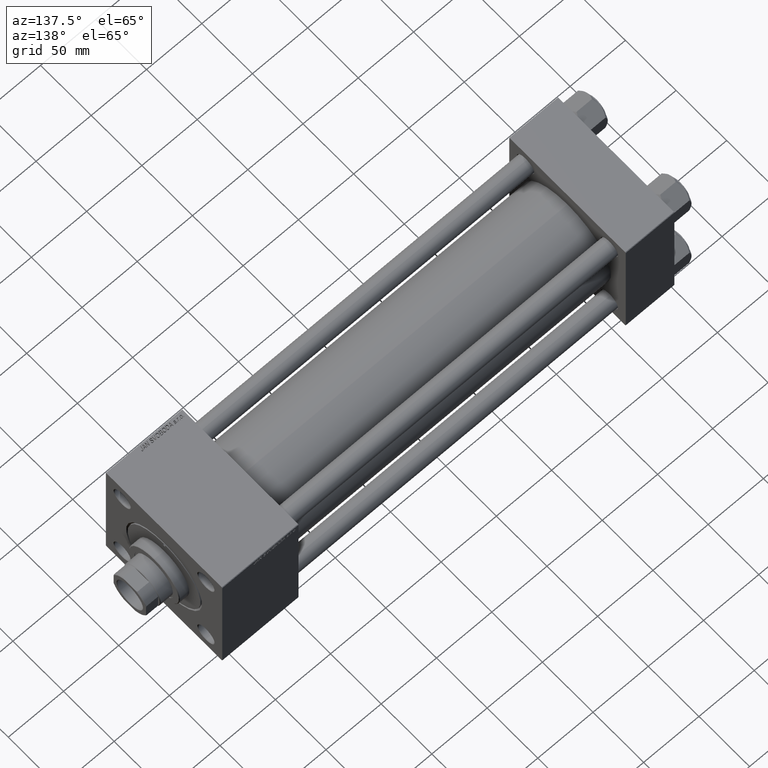
[diagram: clean part render]
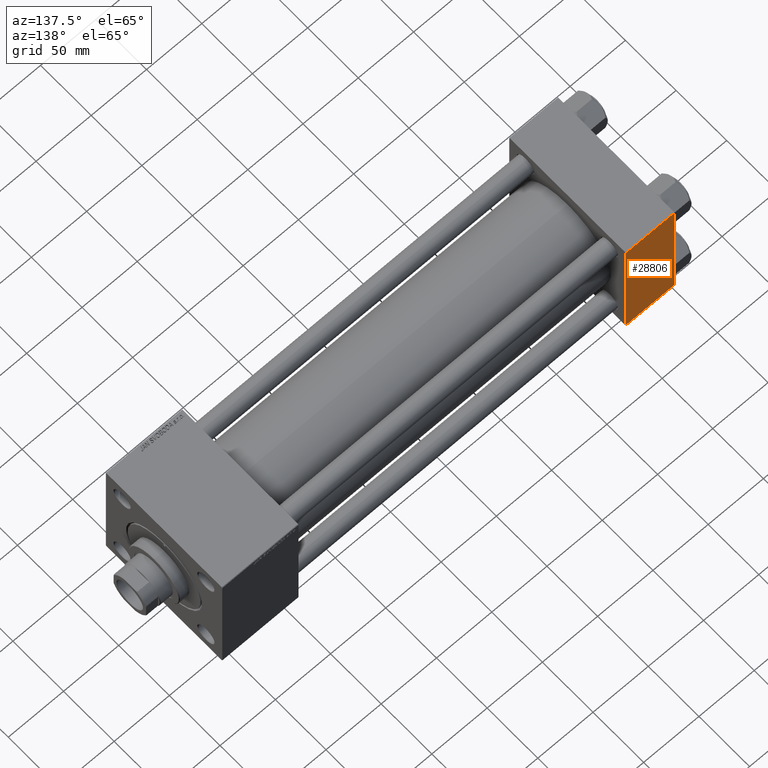
[diagram: same view with one face highlighted and labeled with its STEP entity id]
A machine part, auxiliary view. The second image highlights one B-rep face of the part: STEP entity #28806.
In plain terms, the highlighted planar face has unit normal (0, 1, 0).
Its self-contained STEP definition (entity closure, byte-faithful):
#63 = LINE ( 'NONE', #15701, #32620 ) ;
#191 = CARTESIAN_POINT ( 'NONE',  ( 44.00000000000000000, 57.49999999999999289, -57.00000000000000711 ) ) ;
#586 = VECTOR ( 'NONE', #38319, 1000.000000000000000 ) ;
#1879 = CARTESIAN_POINT ( 'NONE',  ( 44.00000000000000000, 57.49999999999999289, 57.00000000000003553 ) ) ;
#2037 = VERTEX_POINT ( 'NONE', #1879 ) ;
#3162 = LINE ( 'NONE', #33958, #46163 ) ;
#3938 = LINE ( 'NONE', #15249, #35849 ) ;
#6564 = VERTEX_POINT ( 'NONE', #38716 ) ;
#10856 = DIRECTION ( 'NONE',  ( -1.000000000000000000, 0.000000000000000000, 0.000000000000000000 ) ) ;
#11949 = DIRECTION ( 'NONE',  ( 0.000000000000000000, -0.000000000000000000, 1.000000000000000000 ) ) ;
#14452 = DIRECTION ( 'NONE',  ( 0.000000000000000000, 0.000000000000000000, -1.000000000000000000 ) ) ;
#15249 = CARTESIAN_POINT ( 'NONE',  ( 0.000000000000000000, 57.49999999999999289, 57.50000000000000711 ) ) ;
#15701 = CARTESIAN_POINT ( 'NONE',  ( 44.00000000000000000, 57.49999999999999289, -57.00000000000000711 ) ) ;
#16037 = EDGE_CURVE ( 'NONE', #20031, #6564, #3938, .T. ) ;
#16503 = EDGE_LOOP ( 'NONE', ( #40114, #30880, #24908, #31370 ) ) ;
#16643 = CARTESIAN_POINT ( 'NONE',  ( 44.00000000000000000, 57.49999999999999289, 57.00000000000003553 ) ) ;
#19135 = CARTESIAN_POINT ( 'NONE',  ( 44.00000000000000000, 57.49999999999999289, 57.50000000000000711 ) ) ;
#19843 = CARTESIAN_POINT ( 'NONE',  ( 0.000000000000000000, 57.49999999999999289, 57.00000000000003553 ) ) ;
#20031 = VERTEX_POINT ( 'NONE', #19843 ) ;
#22224 = AXIS2_PLACEMENT_3D ( 'NONE', #19135, #46624, #11949 ) ;
#23959 = VERTEX_POINT ( 'NONE', #191 ) ;
#24908 = ORIENTED_EDGE ( 'NONE', *, *, #16037, .F. ) ;
#28806 = ADVANCED_FACE ( 'NONE', ( #38399 ), #30977, .T. ) ;
#30880 = ORIENTED_EDGE ( 'NONE', *, *, #50135, .T. ) ;
#30935 = DIRECTION ( 'NONE',  ( 0.000000000000000000, 0.000000000000000000, -1.000000000000000000 ) ) ;
#30977 = PLANE ( 'NONE',  #22224 ) ;
#31370 = ORIENTED_EDGE ( 'NONE', *, *, #48242, .T. ) ;
#32620 = VECTOR ( 'NONE', #10856, 1000.000000000000000 ) ;
#33958 = CARTESIAN_POINT ( 'NONE',  ( 44.00000000000000000, 57.49999999999999289, 57.50000000000000711 ) ) ;
#35138 = LINE ( 'NONE', #16643, #586 ) ;
#35849 = VECTOR ( 'NONE', #30935, 1000.000000000000000 ) ;
#37280 = EDGE_CURVE ( 'NONE', #2037, #23959, #3162, .T. ) ;
#38319 = DIRECTION ( 'NONE',  ( 1.000000000000000000, 0.000000000000000000, 0.000000000000000000 ) ) ;
#38399 = FACE_OUTER_BOUND ( 'NONE', #16503, .T. ) ;
#38716 = CARTESIAN_POINT ( 'NONE',  ( 0.000000000000000000, 57.49999999999999289, -57.00000000000000711 ) ) ;
#40114 = ORIENTED_EDGE ( 'NONE', *, *, #37280, .T. ) ;
#46163 = VECTOR ( 'NONE', #14452, 1000.000000000000000 ) ;
#46624 = DIRECTION ( 'NONE',  ( -0.000000000000000000, 1.000000000000000000, 0.000000000000000000 ) ) ;
#48242 = EDGE_CURVE ( 'NONE', #20031, #2037, #35138, .T. ) ;
#50135 = EDGE_CURVE ( 'NONE', #23959, #6564, #63, .T. ) ;